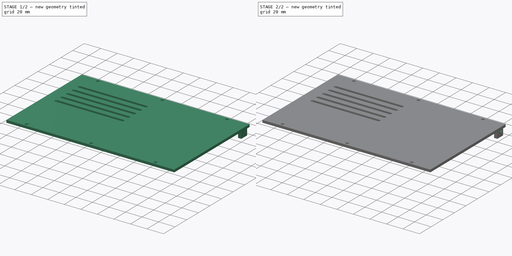
[diagram: build sequence overview — one tinted view per stage of 2, left to right]
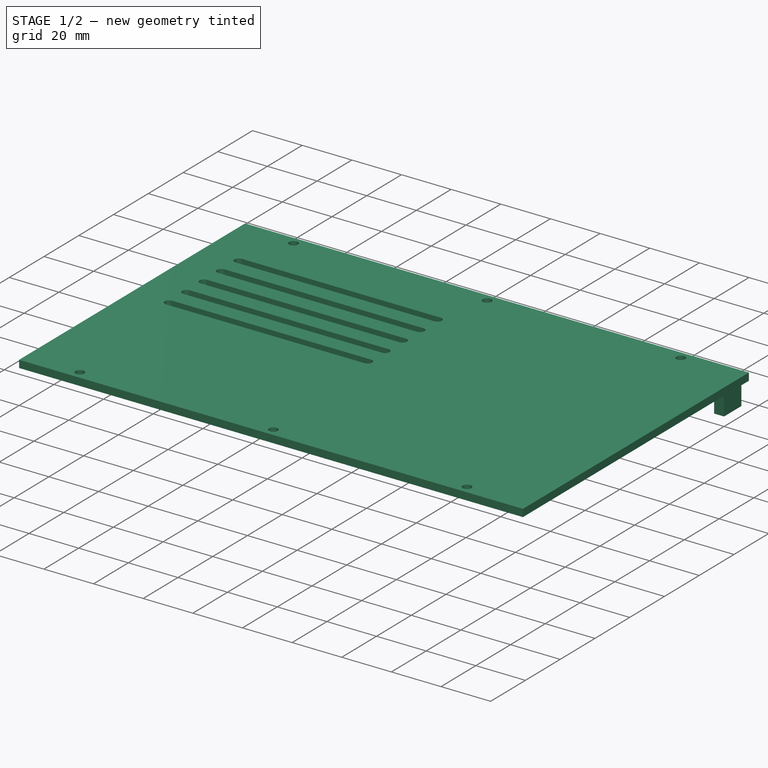
[diagram: stage 1 of 2 — iso view after this stage's code; geometry added in this stage tinted green]
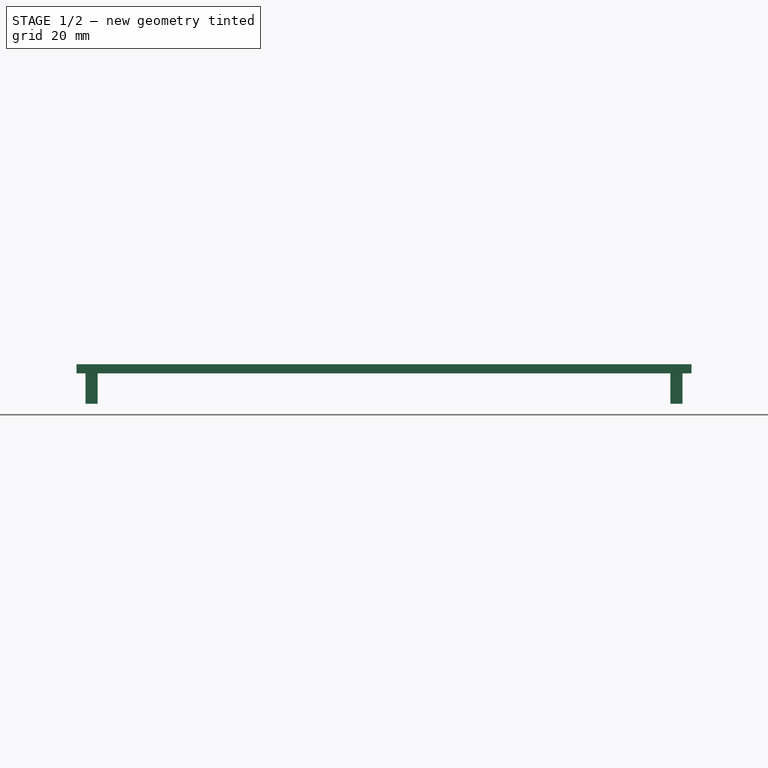
[diagram: stage 1 of 2 — front view after this stage's code; geometry added in this stage tinted green]
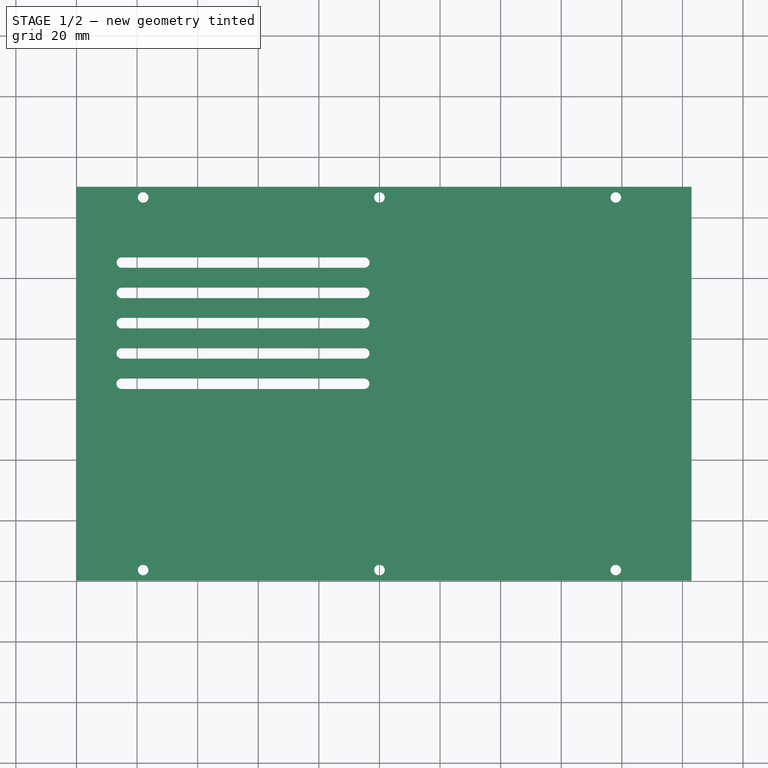
[diagram: stage 1 of 2 — top view after this stage's code; geometry added in this stage tinted green]
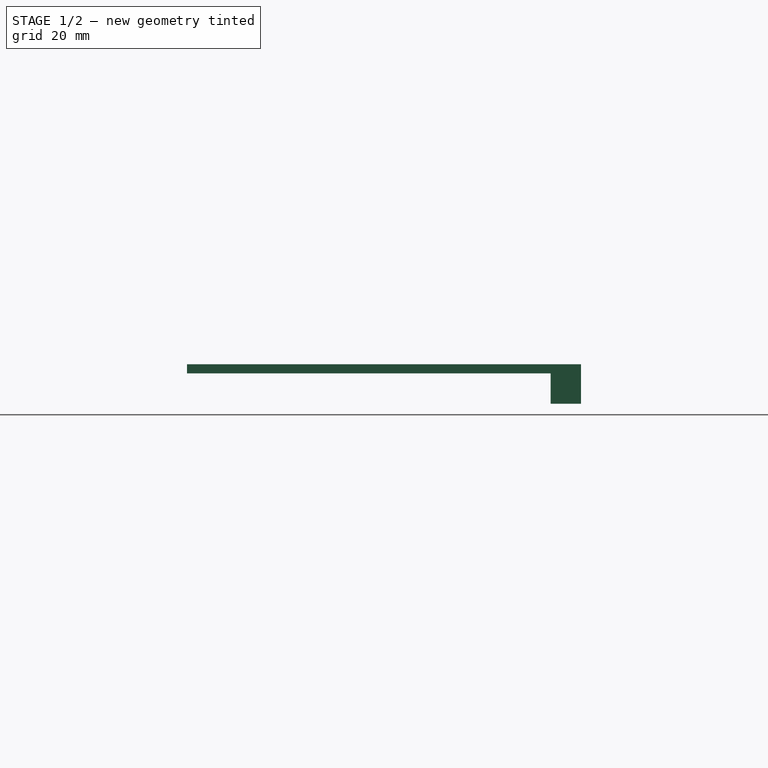
[diagram: stage 1 of 2 — right view after this stage's code; geometry added in this stage tinted green]
FCSTD DOCUMENT  (FreeCAD 0.21R30398 (Git))
Label: T41 Side Left Panel V010
License: All rights reserved
LicenseURL: http://en.wikipedia.org/wiki/All_rights_reserved
objects: Sketcher::SketchObject×4, PartDesign::Pad×2, PartDesign::Plane×2, PartDesign::Pocket×2, PartDesign::Body×1
note: 15 computed .brp shape members not serialized (recipe doc carries the construction recipe); baked Part::Feature solids carry a one-line shape summary decoded from their .brp

FEATURE [Sketcher::SketchObject] Sketch  label="SketchBase"
  FullyConstrained = true
  MapMode = 5
  Support = -> [XY_Plane]
  sketch-geometry (34):
    g0: LineSegment StartX=0 StartY=130 StartZ=0 EndX=203 EndY=130 EndZ=0
    g1: LineSegment StartX=203 StartY=130 StartZ=0 EndX=203 EndY=0 EndZ=0
    g2: LineSegment StartX=203 StartY=0 StartZ=0 EndX=0 EndY=0 EndZ=0
    g3: LineSegment StartX=0 StartY=0 StartZ=0 EndX=0 EndY=130 EndZ=0
    g4: Circle CenterX=22 CenterY=126.5 CenterZ=0 NormalX=0 NormalY=0 NormalZ=1 AngleXU=0 Radius=1.75
    g5: Circle CenterX=100 CenterY=126.5 CenterZ=0 NormalX=0 NormalY=0 NormalZ=1 AngleXU=0 Radius=1.75
    g6: Circle CenterX=178 CenterY=126.5 CenterZ=0 NormalX=0 NormalY=0 NormalZ=1 AngleXU=0 Radius=1.75
    g7: Circle CenterX=22 CenterY=3.5 CenterZ=0 NormalX=0 NormalY=0 NormalZ=1 AngleXU=0 Radius=1.75
    g8: Circle CenterX=100 CenterY=3.5 CenterZ=0 NormalX=0 NormalY=0 NormalZ=1 AngleXU=0 Radius=1.75
    g9: Circle CenterX=178 CenterY=3.5 CenterZ=0 NormalX=0 NormalY=0 NormalZ=1 AngleXU=0 Radius=1.75
    g10: ArcOfCircle CenterX=15 CenterY=105 CenterZ=0 NormalX=0 NormalY=0 NormalZ=1 AngleXU=0 Radius=1.75 StartAngle=1.5708 EndAngle=4.71239
    g11: ArcOfCircle CenterX=95 CenterY=105 CenterZ=0 NormalX=0 NormalY=0 NormalZ=1 AngleXU=0 Radius=1.75 StartAngle=4.71239 EndAngle=7.85398
    g12: LineSegment StartX=15 StartY=103.25 StartZ=0 EndX=95 EndY=103.25 EndZ=0
    g13: LineSegment StartX=15 StartY=106.75 StartZ=0 EndX=95 EndY=106.75 EndZ=0
    g14: ArcOfCircle CenterX=14.9852 CenterY=95 CenterZ=0 NormalX=0 NormalY=0 NormalZ=1 AngleXU=0 Radius=1.75 StartAngle=1.5708 EndAngle=4.71239
    g15: ArcOfCircle CenterX=94.9852 CenterY=95 CenterZ=0 NormalX=0 NormalY=0 NormalZ=1 AngleXU=0 Radius=1.75 StartAngle=4.71239 EndAngle=7.85398
    g16: LineSegment StartX=14.9852 StartY=93.25 StartZ=0 EndX=94.9852 EndY=93.25 EndZ=0
    g17: LineSegment StartX=14.9852 StartY=96.75 StartZ=0 EndX=94.9852 EndY=96.75 EndZ=0
    g18: LineSegment StartX=15 StartY=106.75 StartZ=0 EndX=14.9852 EndY=96.75 EndZ=0
    g19: ArcOfCircle CenterX=14.9704 CenterY=85 CenterZ=0 NormalX=0 NormalY=0 NormalZ=1 AngleXU=0 Radius=1.75 StartAngle=1.5708 EndAngle=4.71239
    g20: ArcOfCircle CenterX=94.9704 CenterY=85 CenterZ=0 NormalX=0 NormalY=0 NormalZ=1 AngleXU=0 Radius=1.75 StartAngle=4.71239 EndAngle=7.85398
    g21: LineSegment StartX=14.9704 StartY=83.25 StartZ=0 EndX=94.9704 EndY=83.25 EndZ=0
    g22: LineSegment StartX=14.9704 StartY=86.75 StartZ=0 EndX=94.9704 EndY=86.75 EndZ=0
    g23: LineSegment StartX=14.9852 StartY=96.75 StartZ=0 EndX=14.9704 EndY=86.75 EndZ=0
    g24: ArcOfCircle CenterX=14.9556 CenterY=75 CenterZ=0 NormalX=0 NormalY=0 NormalZ=1 AngleXU=0 Radius=1.75 StartAngle=1.5708 EndAngle=4.71239
    g25: ArcOfCircle CenterX=94.9556 CenterY=75 CenterZ=0 NormalX=0 NormalY=0 NormalZ=1 AngleXU=0 Radius=1.75 StartAngle=4.71239 EndAngle=7.85398
    g26: LineSegment StartX=14.9556 StartY=73.25 StartZ=0 EndX=94.9556 EndY=73.25 EndZ=0
    g27: LineSegment StartX=14.9556 StartY=76.75 StartZ=0 EndX=94.9556 EndY=76.75 EndZ=0
    g28: LineSegment StartX=14.9704 StartY=86.75 StartZ=0 EndX=14.9556 EndY=76.75 EndZ=0
    g29: ArcOfCircle CenterX=14.9408 CenterY=65 CenterZ=0 NormalX=0 NormalY=0 NormalZ=1 AngleXU=0 Radius=1.75 StartAngle=1.5708 EndAngle=4.71239
    g30: ArcOfCircle CenterX=94.9408 CenterY=65 CenterZ=0 NormalX=0 NormalY=0 NormalZ=1 AngleXU=0 Radius=1.75 StartAngle=4.71239 EndAngle=7.85398
    g31: LineSegment StartX=14.9408 StartY=63.25 StartZ=0 EndX=94.9408 EndY=63.25 EndZ=0
    g32: LineSegment StartX=14.9408 StartY=66.75 StartZ=0 EndX=94.9408 EndY=66.75 EndZ=0
    g33: LineSegment StartX=14.9556 StartY=76.75 StartZ=0 EndX=14.9408 EndY=66.75 EndZ=0
  constraints (89):
    c: Coincident(g0,g1)
    c: Coincident(g1,g2)
    c: Coincident(g2,g3)
    c: Coincident(g3,g0)
    c: Horizontal(g0)
    c: Vertical(g1)
    c: DistanceX(g0,g0) = 203
    c: DistanceY(g1,g1) = 130
    c: Symmetric(g2,g1,g-2)
    c: Symmetric(g2,g0,g-1)
    c: Equal(g4,g5)
    c: Equal(g4,g6)
    c: Diameter(g4) = 3.5
    c: Horizontal(g4,g5)
    c: Horizontal(g5,g6)
    c: Equal(g7,g8)
    c: Equal(g7,g9)
    c: Diameter(g7) = 3.5
    c: Horizontal(g7,g8)
    c: Horizontal(g8,g9)
    c: Tangent(g10,g13) = 1.5708
    c: Tangent(g10,g12) = -1.5708
    c: Tangent(g12,g11) = -1.5708
    c: Tangent(g13,g11) = 1.5708
    c: Horizontal(g12)
    c: Equal(g10,g11)
    c: DistanceX(g10,g11) = 80
    c: DistanceY(g10,g10) = 3.5
    c: Tangent(g14,g17) = 1.5708
    c: Tangent(g14,g16) = -1.5708
    c: Tangent(g16,g15) = -1.5708
    c: Tangent(g17,g15) = 1.5708
    c: Horizontal(g16)
    c: Equal(g14,g15)
    c: DistanceX(g14,g15) = 80
    c: DistanceY(g14,g14) = 3.5
    c: Coincident(g10,g18)
    c: Coincident(g14,g18)
    c: Distance(g18) = 10
    c: Angle(g18) = -1.57228
    c: Tangent(g19,g22) = 1.5708
    c: Tangent(g19,g21) = -1.5708
    c: Tangent(g21,g20) = -1.5708
    c: Tangent(g22,g20) = 1.5708
    c: Horizontal(g21)
    c: Equal(g19,g20)
    c: DistanceX(g19,g20) = 80
    c: DistanceY(g19,g19) = 3.5
    c: Coincident(g14,g23)
    c: Coincident(g19,g23)
    c: Equal(g18,g23)
    c: Parallel(g23,g18)
    c: Tangent(g24,g27) = 1.5708
    c: Tangent(g24,g26) = -1.5708
    c: Tangent(g26,g25) = -1.5708
    c: Tangent(g27,g25) = 1.5708
    c: Horizontal(g26)
    c: Equal(g24,g25)
    c: DistanceX(g24,g25) = 80
    c: DistanceY(g24,g24) = 3.5
    c: Coincident(g19,g28)
    c: Coincident(g24,g28)
    c: Equal(g18,g28)
    c: Parallel(g28,g18)
    c: Tangent(g29,g32) = 1.5708
    c: Tangent(g29,g31) = -1.5708
    c: Tangent(g31,g30) = -1.5708
    c: Tangent(g32,g30) = 1.5708
    c: Horizontal(g31)
    c: Equal(g29,g30)
    c: DistanceX(g29,g30) = 80
    c: DistanceY(g29,g29) = 3.5
    c: Coincident(g24,g33)
    c: Coincident(g29,g33)
    c: Equal(g18,g33)
    c: Parallel(g33,g18)
    c: Vertical(g3)
    c: Vertical(g7,g4)
    c: Vertical(g9,g6)
    c: Horizontal(g2)
    c: DistanceX(g9,g1) = 25
    c: DistanceX(g2,g7) = 22
    c: DistanceY(g2,g7) = 3.5
    c: DistanceY(g4,g0) = 3.5
    c: Vertical(g8,g5)
    c: DistanceY(g11,g0) = 25
    c: Coincident(g2,g-1)
    c: DistanceX(g0,g10) = 15
    c: DistanceX(g2,g8) = 100
FEATURE [PartDesign::Pad] Pad
  Direction = (0,0,1)
  Length = 3
  Length2 = 100
  Profile = -> Sketch
  ReferenceAxis = -> Sketch [N_Axis]
  Reversed = true
  Type = 0
FEATURE [Sketcher::SketchObject] Sketch002
  AttachmentOffset = pos=(0,0,107) rot=(0,0,1;0rad)
  FullyConstrained = true
  MapMode = 5
  Placement = pos=(107,-2.38e-14,2.38e-14) rot=(0.57735,0.57735,0.57735;2.0944rad)
  Support = -> [YZ_Plane]
  sketch-geometry (6):
    g0: Circle CenterX=-51 CenterY=7 CenterZ=0 NormalX=0 NormalY=0 NormalZ=1 AngleXU=0 Radius=1.75
    g1: Circle CenterX=61 CenterY=7 CenterZ=0 NormalX=0 NormalY=0 NormalZ=1 AngleXU=0 Radius=1.75
    g2: LineSegment StartX=-40 StartY=13 StartZ=0 EndX=55 EndY=13 EndZ=0
    g3: LineSegment StartX=55 StartY=13 StartZ=0 EndX=55 EndY=9 EndZ=0
    g4: LineSegment StartX=55 StartY=9 StartZ=0 EndX=-40 EndY=9 EndZ=0
    g5: LineSegment StartX=-40 StartY=9 StartZ=0 EndX=-40 EndY=13 EndZ=0
  constraints (18):
    c: Equal(g0,g1)
    c: DistanceY(g-1,g0) = 7
    c: Horizontal(g0,g1)
    c: DistanceX(g1) = 61
    c: DistanceX(g0,g-1) = 51
    c: Coincident(g2,g3)
    c: Coincident(g3,g4)
    c: Coincident(g4,g5)
    c: Coincident(g5,g2)
    c: Horizontal(g2)
    c: Horizontal(g4)
    c: Vertical(g3)
    c: Vertical(g5)
    c: DistanceX(g4,g-1) = 40
    c: DistanceX(g4,g4) = 95
    c: DistanceY(g-1,g2) = 13
    c: DistanceY(g5,g5) = 4
    c: Diameter(g0) = 3.5
FEATURE [PartDesign::Plane] DatumPlane
  AttachmentOffset = pos=(0,0,-3) rot=(0,0,1;0rad)
  Length = 60
  MapMode = 5
  Placement = pos=(0,0,-3) rot=(0,0,1;0rad)
  ResizeMode = 0
  Support = -> [XY_Plane]
  Width = 60
FEATURE [Sketcher::SketchObject] Sketch001
  FullyConstrained = true
  MapMode = 5
  Placement = pos=(0,0,-3) rot=(0,0,1;0rad)
  Support = -> [DatumPlane]
  sketch-geometry (8):
    g0: LineSegment StartX=196 StartY=130 StartZ=0 EndX=200 EndY=130 EndZ=0
    g1: LineSegment StartX=200 StartY=130 StartZ=0 EndX=200 EndY=120 EndZ=0
    g2: LineSegment StartX=200 StartY=120 StartZ=0 EndX=196 EndY=120 EndZ=0
    g3: LineSegment StartX=196 StartY=120 StartZ=0 EndX=196 EndY=130 EndZ=0
    g4: LineSegment StartX=3 StartY=130 StartZ=0 EndX=7 EndY=130 EndZ=0
    g5: LineSegment StartX=7 StartY=130 StartZ=0 EndX=7 EndY=120 EndZ=0
    g6: LineSegment StartX=7 StartY=120 StartZ=0 EndX=3 EndY=120 EndZ=0
    g7: LineSegment StartX=3 StartY=120 StartZ=0 EndX=3 EndY=130 EndZ=0
  constraints (24):
    c: Coincident(g0,g1)
    c: Coincident(g1,g2)
    c: Coincident(g2,g3)
    c: Coincident(g3,g0)
    c: Horizontal(g0)
    c: Horizontal(g2)
    c: Vertical(g1)
    c: Vertical(g3)
    c: Coincident(g4,g5)
    c: Coincident(g5,g6)
    c: Coincident(g6,g7)
    c: Coincident(g7,g4)
    c: Horizontal(g4)
    c: Horizontal(g6)
    c: Vertical(g5)
    c: Vertical(g7)
    c: DistanceX(g0,g0) = 4
    c: DistanceX(g4,g4) = 4
    c: DistanceY(g5,g5) = 10
    c: DistanceX(g-1,g6) = 3
    c: DistanceX(g6,g1) = 197
    c: Horizontal(g5,g2)
    c: DistanceY(g-1,g6) = 120
    c: Horizontal(g4,g0)
FEATURE [PartDesign::Pad] Pad001
  BaseFeature = -> Pad
  Direction = (0,0,1)
  Length = 10
  Length2 = 100
  Profile = -> Sketch001
  ReferenceAxis = -> Sketch001 [N_Axis]
  Reversed = true
  Type = 0
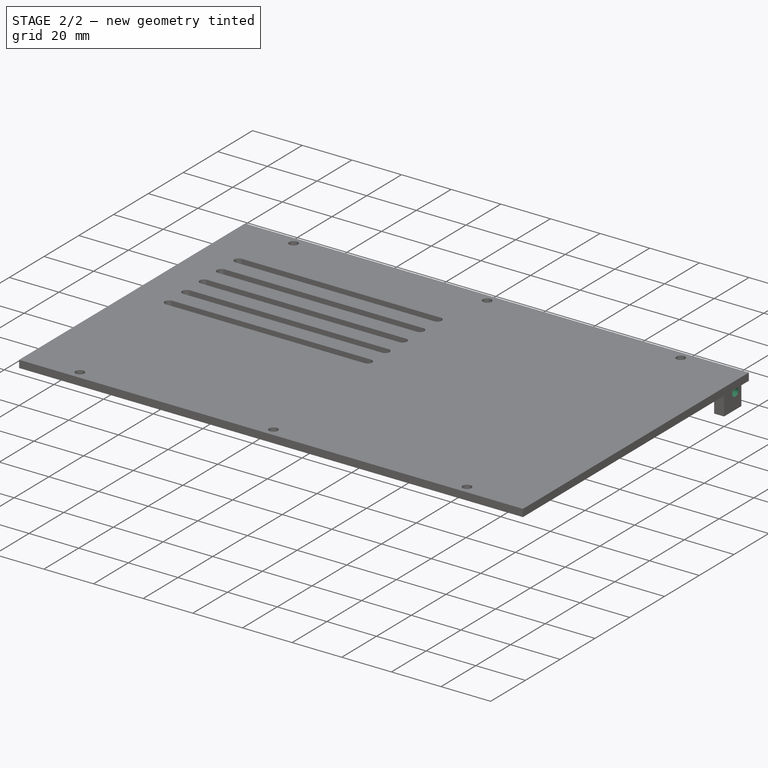
[diagram: stage 2 of 2 — iso view after this stage's code; geometry added in this stage tinted green]
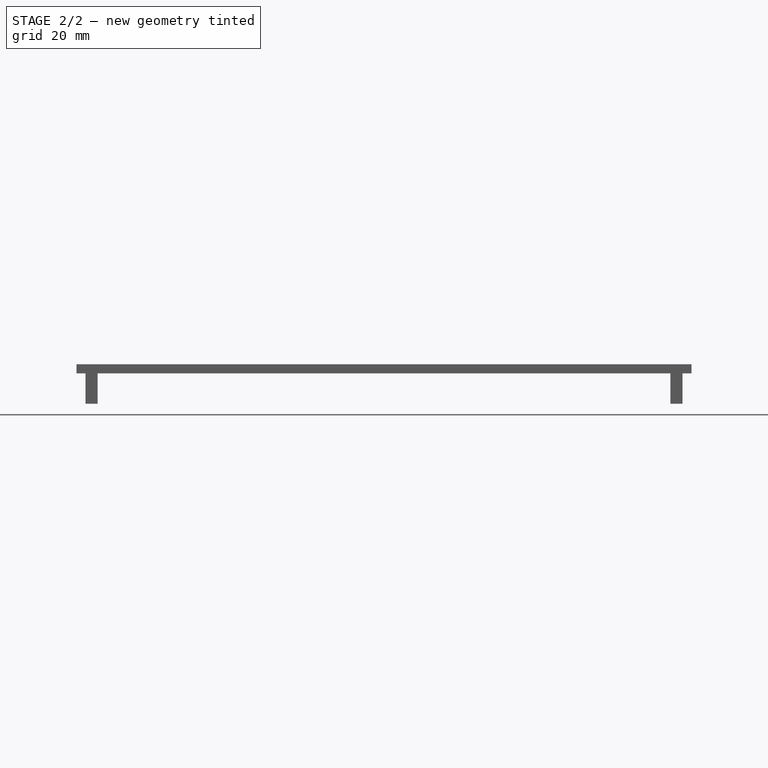
[diagram: stage 2 of 2 — front view after this stage's code; geometry added in this stage tinted green]
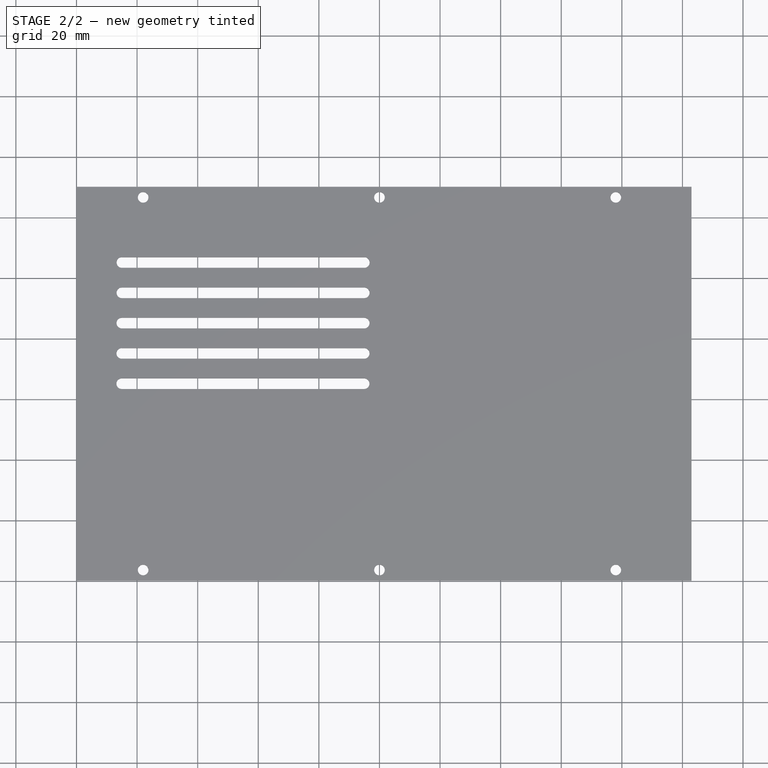
[diagram: stage 2 of 2 — top view after this stage's code; geometry added in this stage tinted green]
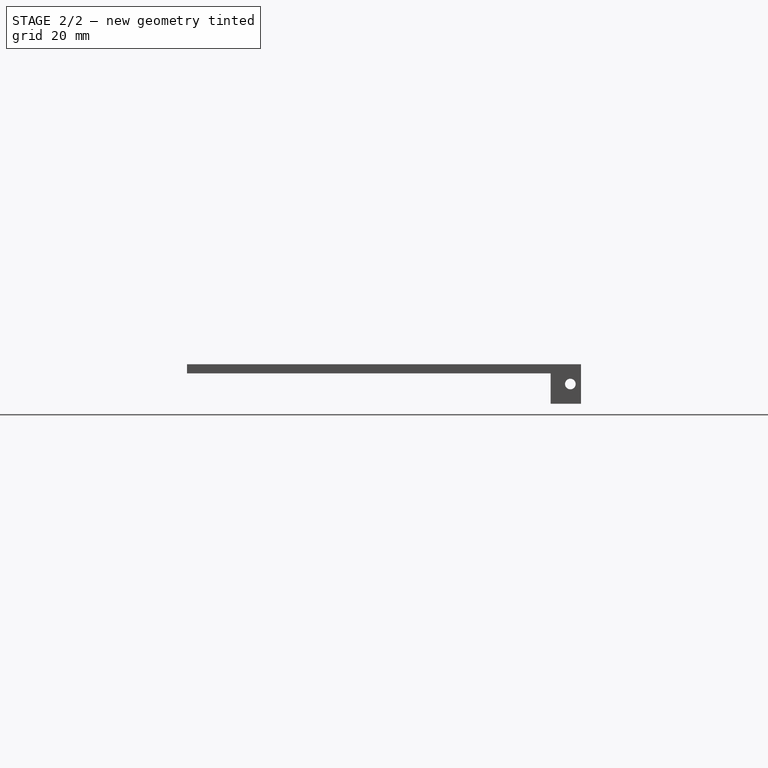
[diagram: stage 2 of 2 — right view after this stage's code; geometry added in this stage tinted green]
FEATURE [PartDesign::Pocket] Pocket
  BaseFeature = -> Pad001
  Direction = (-1,2e-16,-3e-16)
  Length = 225
  Length2 = 100
  Profile = -> Sketch002
  Type = 0
FEATURE [PartDesign::Plane] DatumPlane001
  AttachmentOffset = pos=(0,0,3) rot=(0,0,1;0rad)
  Length = 60
  MapMode = 5
  Placement = pos=(3,-7e-16,7e-16) rot=(0.57735,0.57735,0.57735;2.0944rad)
  ResizeMode = 0
  Support = -> [YZ_Plane]
  Width = 60
FEATURE [Sketcher::SketchObject] Sketch003
  FullyConstrained = true
  MapMode = 5
  Placement = pos=(3,-7e-16,7e-16) rot=(0.57735,0.57735,0.57735;2.0944rad)
  Support = -> [DatumPlane001]
  sketch-geometry (1):
    g0: Circle CenterX=126.5 CenterY=-6.5 CenterZ=0 NormalX=0 NormalY=0 NormalZ=1 AngleXU=0 Radius=1.75
  constraints (3):
    c: Diameter(g0) = 3.5
    c: DistanceY(g0,g-1) = 6.5
    c: DistanceX(g-1,g0) = 126.5
FEATURE [PartDesign::Pocket] Pocket001
  BaseFeature = -> Pocket
  Direction = (-1,1e-16,-1e-16)
  Length = 5
  Length2 = 5
  Profile = -> Sketch003
  ReferenceAxis = -> Sketch003 [N_Axis]
  Reversed = true
  Type = 1
FEATURE [PartDesign::Body] Body
  Group = -> [Sketch,Pad,Sketch001,Pad001,Sketch002,Pocket,DatumPlane,DatumPlane001,Sketch003,Pocket001]
  Origin = -> Origin
  Tip = -> Pocket001
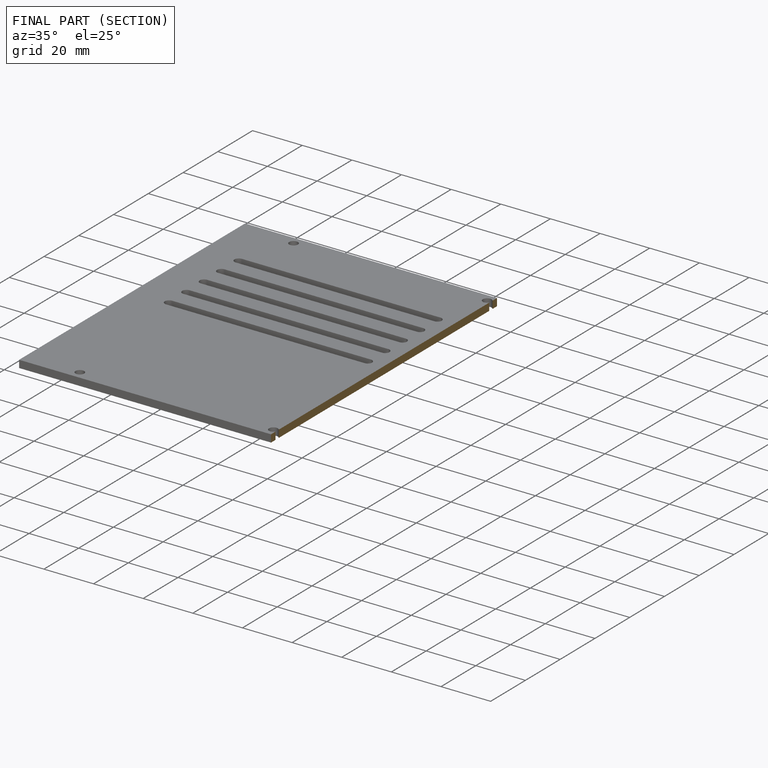
[diagram: finished part — half-section view (interior)]
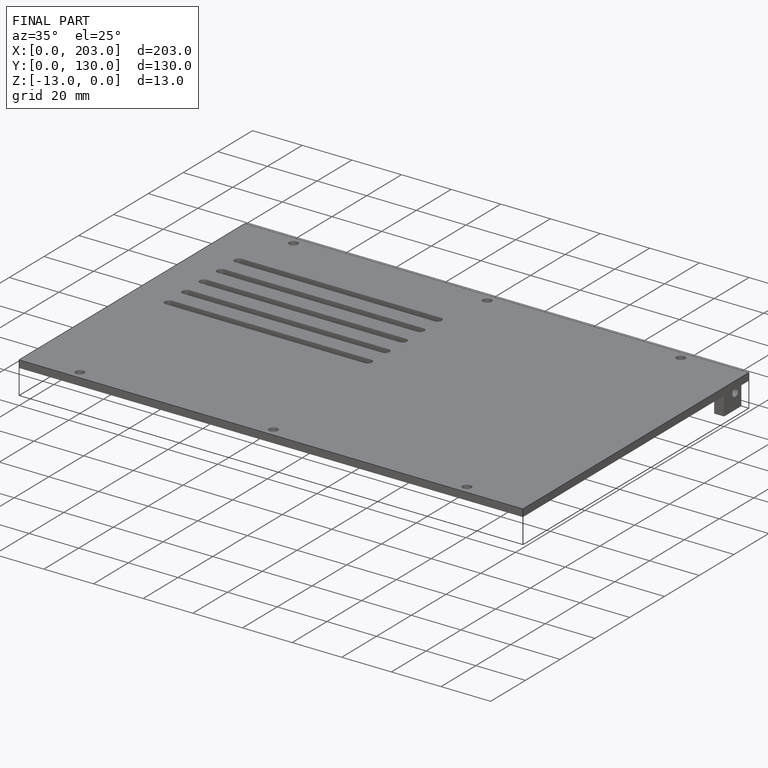
[diagram: finished part — iso view with bounding-box wireframe]
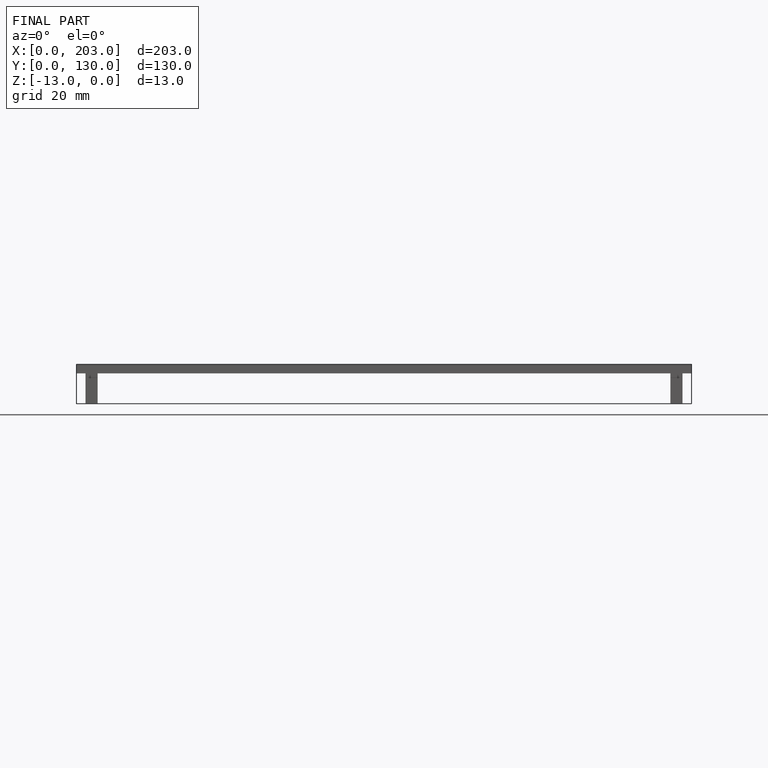
[diagram: finished part — front view with bounding-box wireframe]
